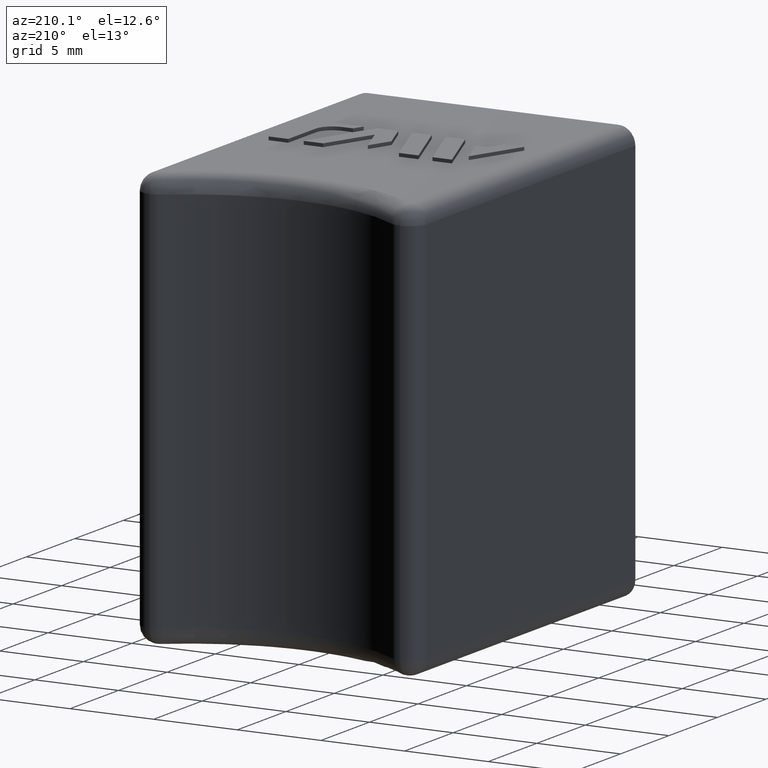
[diagram: clean part render]
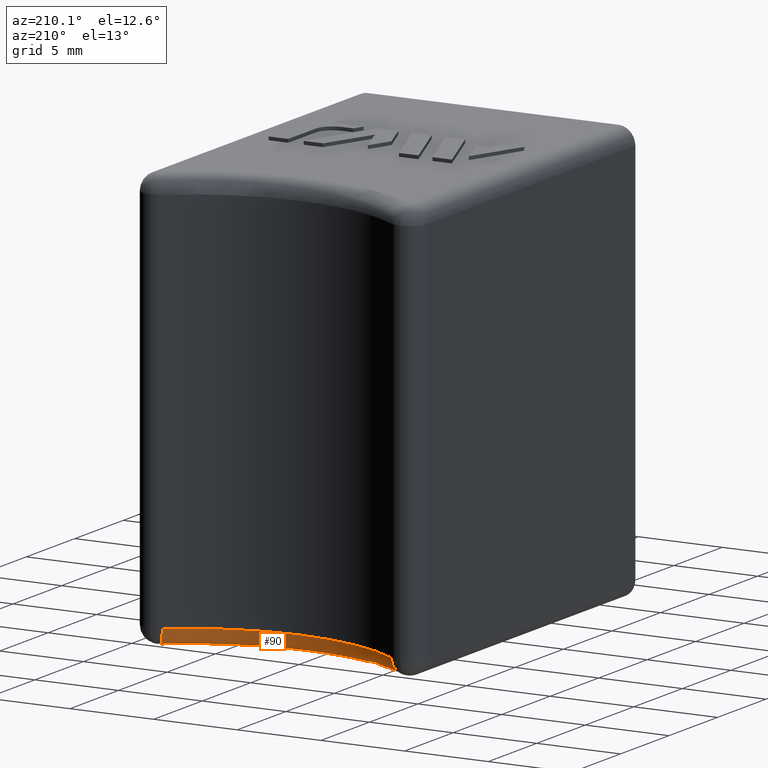
[diagram: same view with one face highlighted and labeled with its STEP entity id]
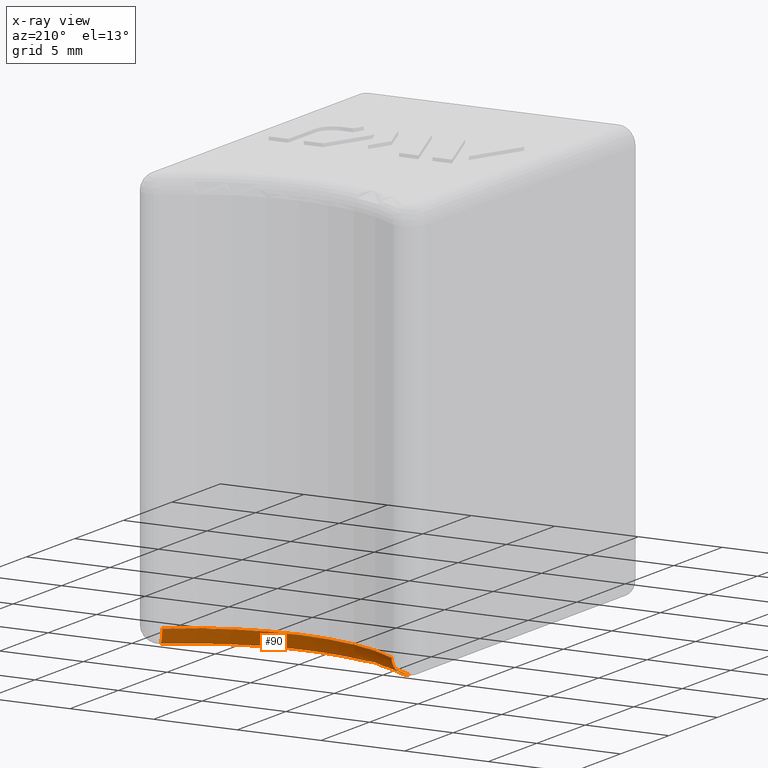
[diagram: x-ray of the same camera — body ghosted, the highlighted face saturated]
A machine part, auxiliary view. The second image highlights one B-rep face of the part: STEP entity #90.
The next image is the same camera in x-ray: the body ghosted, the highlighted face saturated — about 0% of this face is hidden behind the body in this view.
In plain terms, the highlighted toroidal blend (fillet) surface has major radius 12.36 mm and minor (blend) radius 1 mm.
Its self-contained STEP definition (entity closure, byte-faithful):
#90 = ADVANCED_FACE( '', ( #264 ), #265, .T. );
#264 = FACE_OUTER_BOUND( '', #562, .T. );
#265 = TOROIDAL_SURFACE( '', #563, 12.3600000000000, 1.00000000000000 );
#562 = EDGE_LOOP( '', ( #1020, #1021, #1022, #1023 ) );
#563 = AXIS2_PLACEMENT_3D( '', #1024, #1025, #1026 );
#1020 = ORIENTED_EDGE( '', *, *, #2038, .T. );
#1021 = ORIENTED_EDGE( '', *, *, #2035, .F. );
#1022 = ORIENTED_EDGE( '', *, *, #2039, .F. );
#1023 = ORIENTED_EDGE( '', *, *, #2040, .F. );
#1024 = CARTESIAN_POINT( '', ( 0.000000000000000, 31.3600000000000, -11.5000000000000 ) );
#1025 = DIRECTION( '', ( 0.000000000000000, 0.000000000000000, -1.00000000000000 ) );
#1026 = DIRECTION( '', ( -1.00000000000000, 0.000000000000000, 0.000000000000000 ) );
#2035 = EDGE_CURVE( '', #2485, #2490, #2491, .F. );
#2038 = EDGE_CURVE( '', #2495, #2490, #2496, .F. );
#2039 = EDGE_CURVE( '', #2497, #2485, #2498, .T. );
#2040 = EDGE_CURVE( '', #2495, #2497, #2499, .T. );
#2485 = VERTEX_POINT( '', #3151 );
#2490 = VERTEX_POINT( '', #3159 );
#2491 = CIRCLE( '', #3160, 12.3600000000000 );
#2495 = VERTEX_POINT( '', #3166 );
#2496 = CIRCLE( '', #3167, 1.00000000000000 );
#2497 = VERTEX_POINT( '', #3168 );
#2498 = CIRCLE( '', #3169, 1.00000000000000 );
#2499 = CIRCLE( '', #3170, 11.3600000000000 );
#3151 = CARTESIAN_POINT( '', ( -7.45318723768588, 21.5000000000002, -12.5000000000000 ) );
#3159 = CARTESIAN_POINT( '', ( 7.45318723768588, 21.5000000000000, -12.5000000000000 ) );
#3160 = AXIS2_PLACEMENT_3D( '', #3765, #3766, #3767 );
#3166 = CARTESIAN_POINT( '', ( 6.85017856149749, 22.2977346278317, -11.5000000000000 ) );
#3167 = AXIS2_PLACEMENT_3D( '', #3770, #3771, #3772 );
#3168 = CARTESIAN_POINT( '', ( -6.85017856149749, 22.2977346278317, -11.5000000000000 ) );
#3169 = AXIS2_PLACEMENT_3D( '', #3773, #3774, #3775 );
#3170 = AXIS2_PLACEMENT_3D( '', #3776, #3777, #3778 );
#3765 = CARTESIAN_POINT( '', ( 0.000000000000000, 31.3600000000000, -12.5000000000000 ) );
#3766 = DIRECTION( '', ( 0.000000000000000, 0.000000000000000, -1.00000000000000 ) );
#3767 = DIRECTION( '', ( -1.00000000000000, 0.000000000000000, 0.000000000000000 ) );
#3770 = CARTESIAN_POINT( '', ( 7.45318723768588, 21.5000000000002, -11.5000000000000 ) );
#3771 = DIRECTION( '', ( 0.797734627831539, 0.603008676188391, 0.000000000000000 ) );
#3772 = DIRECTION( '', ( -0.603008676188391, 0.797734627831539, 0.000000000000000 ) );
#3773 = CARTESIAN_POINT( '', ( -7.45318723768565, 21.5000000000000, -11.5000000000000 ) );
#3774 = DIRECTION( '', ( -0.797734627831715, 0.603008676188159, 2.91779072671086E-013 ) );
#3775 = DIRECTION( '', ( -0.603008676188159, -0.797734627831715, 0.000000000000000 ) );
#3776 = CARTESIAN_POINT( '', ( 0.000000000000000, 31.3600000000000, -11.5000000000000 ) );
#3777 = DIRECTION( '', ( 0.000000000000000, 0.000000000000000, -1.00000000000000 ) );
#3778 = DIRECTION( '', ( -1.00000000000000, 0.000000000000000, 0.000000000000000 ) );